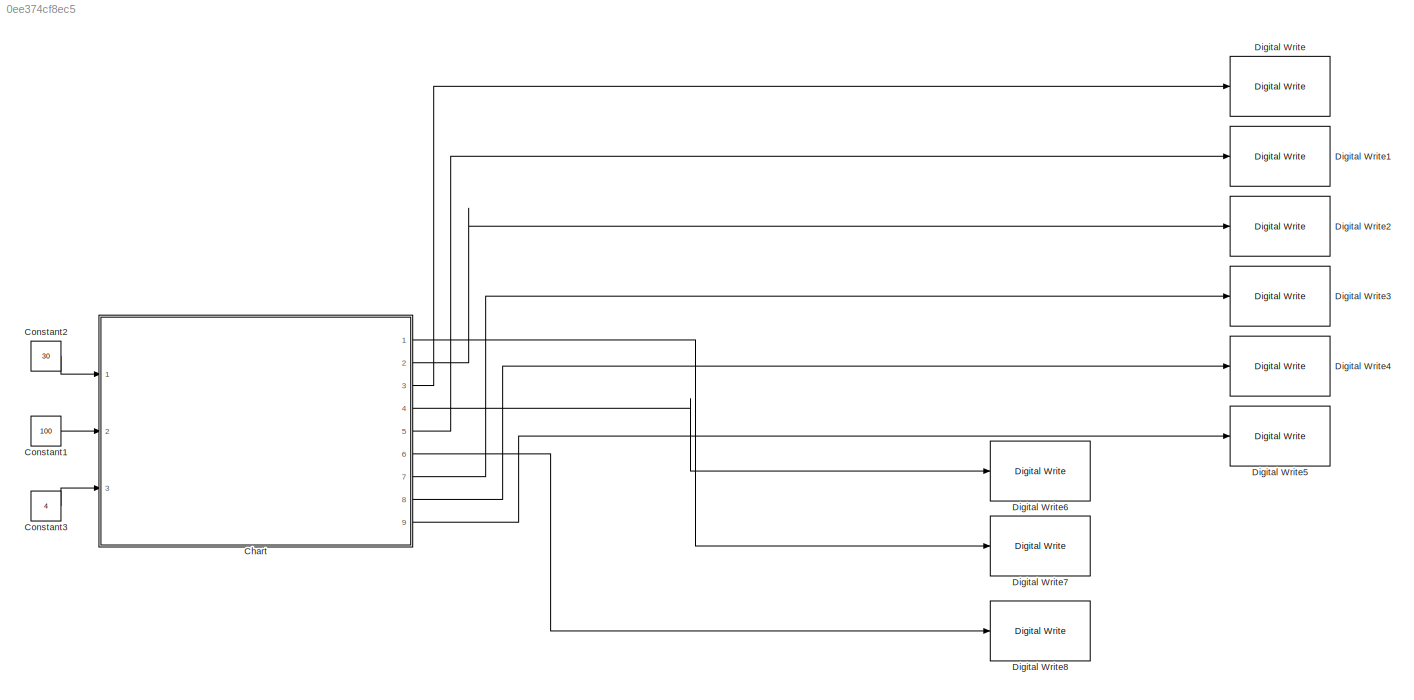
MODEL slx_0ee374cf8ec5
KIND model
CONFIG AbsTol = auto
CONFIG EnableMultiTasking = on
CONFIG FixedStep = 1e-3
CONFIG MaxStep = auto
CONFIG MinStep = auto
CONFIG RelTol = 1e-3
CONFIG SampleTimeConstraint = Unconstrained
CONFIG SolverName = FixedStepAuto
CONFIG StartTime = 0.0
CONFIG StopTime = 10.0
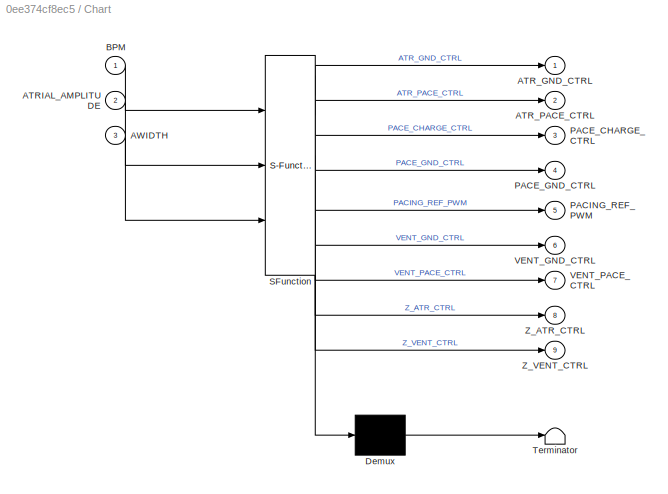
BLOCK [SubSystem] Chart
  ErrorFcn = Stateflow.Translate.translate
  PermitHierarchicalResolution = ExplicitOnly
  PortSchema = {"entries":[{"content":{"sides":[{"content":{"connectorIds":["In1","In2","In3"]},"type":"ConnectorPlacement.EquallySpacedRectSide","uuid":"a22e05d8-b46e-41db-a99f-a3bab389e16c"},{"content":{"connectorIds":["Out3","Out5","Out2","Out7","Out8","Out9","Out4","Out1","Out6"],"side":"RIGHT"},"type":"ConnectorPlacement.EquallySpacedRectSide","uuid":"b830ec1d-656a-4b92-afcd-8fda6b31ad8a"},{"content":{"conn...<+308ch>
  Ports = [3, 9]
  RequestExecContextInheritance = off
  SFBlockType = Chart
  TreatAsAtomicUnit = on
BLOCK [Demux] Chart/ Demux 
  Outputs = 1
  Ports = [1, 1]
BLOCK [S-Function] Chart/ SFunction 
  EnableBusSupport = on
  FunctionName = sf_sfun
  PortCounts = [3 10]
  Ports = [3, 10]
  SFcnIsStateOwnerBlock = off
  SFunctionDeploymentMode = off
  Tag = Stateflow S-Function 3
BLOCK [Terminator] Chart/ Terminator 
BLOCK [Inport] Chart/ATRIAL_AMPLITUDE
  Port = 2
BLOCK [Outport] Chart/ATR_GND_CTRL
BLOCK [Outport] Chart/ATR_PACE_CTRL
  Port = 2
BLOCK [Inport] Chart/AWIDTH
  Port = 3
BLOCK [Inport] Chart/BPM
BLOCK [Outport] Chart/PACE_CHARGE_CTRL
  Port = 3
BLOCK [Outport] Chart/PACE_GND_CTRL
  Port = 4
BLOCK [Outport] Chart/PACING_REF_PWM
  Port = 5
BLOCK [Outport] Chart/VENT_GND_CTRL
  Port = 6
BLOCK [Outport] Chart/VENT_PACE_CTRL
  Port = 7
BLOCK [Outport] Chart/Z_ATR_CTRL
  Port = 8
BLOCK [Outport] Chart/Z_VENT_CTRL
  Port = 9
BLOCK [Constant] Constant1
  Value = 100
BLOCK [Constant] Constant2
  Value = 30
BLOCK [Constant] Constant3
  Value = 4
BLOCK [Reference] Digital Write  REF=frdmk64flib/Digital Write
  Ports = [1]
  SourceBlock = frdmk64flib/Digital Write
  SourceProductBaseCode = EC_FRDM_K64F
  SourceType = freedomk64f.DigitalWrite
BLOCK [Reference] Digital Write1  REF=frdmk64flib/Digital Write
  Ports = [1]
  SourceBlock = frdmk64flib/Digital Write
  SourceProductBaseCode = EC_FRDM_K64F
  SourceType = freedomk64f.DigitalWrite
BLOCK [Reference] Digital Write2  REF=frdmk64flib/Digital Write
  Ports = [1]
  SourceBlock = frdmk64flib/Digital Write
  SourceProductBaseCode = EC_FRDM_K64F
  SourceType = freedomk64f.DigitalWrite
BLOCK [Reference] Digital Write3  REF=frdmk64flib/Digital Write
  Ports = [1]
  SourceBlock = frdmk64flib/Digital Write
  SourceProductBaseCode = EC_FRDM_K64F
  SourceType = freedomk64f.DigitalWrite
BLOCK [Reference] Digital Write4  REF=frdmk64flib/Digital Write
  Ports = [1]
  SourceBlock = frdmk64flib/Digital Write
  SourceProductBaseCode = EC_FRDM_K64F
  SourceType = freedomk64f.DigitalWrite
BLOCK [Reference] Digital Write5  REF=frdmk64flib/Digital Write
  Ports = [1]
  SourceBlock = frdmk64flib/Digital Write
  SourceProductBaseCode = EC_FRDM_K64F
  SourceType = freedomk64f.DigitalWrite
BLOCK [Reference] Digital Write6  REF=frdmk64flib/Digital Write
  Ports = [1]
  SourceBlock = frdmk64flib/Digital Write
  SourceProductBaseCode = EC_FRDM_K64F
  SourceType = freedomk64f.DigitalWrite
BLOCK [Reference] Digital Write7  REF=frdmk64flib/Digital Write
  Ports = [1]
  SourceBlock = frdmk64flib/Digital Write
  SourceProductBaseCode = EC_FRDM_K64F
  SourceType = freedomk64f.DigitalWrite
BLOCK [Reference] Digital Write8  REF=frdmk64flib/Digital Write
  Ports = [1]
  SourceBlock = frdmk64flib/Digital Write
  SourceProductBaseCode = EC_FRDM_K64F
  SourceType = freedomk64f.DigitalWrite
LINE Chart:1 -> Digital Write7:1
LINE Chart:2 -> Digital Write2:1
LINE Chart:3 -> Digital Write:1
LINE Chart:4 -> Digital Write6:1
LINE Chart:5 -> Digital Write1:1
LINE Chart:6 -> Digital Write8:1
LINE Chart:7 -> Digital Write3:1
LINE Chart:8 -> Digital Write4:1
LINE Chart:9 -> Digital Write5:1
LINE Constant1:1 -> Chart:2
LINE Constant2:1 -> Chart:1
LINE Constant3:1 -> Chart:3
CHART Chart states=2 transitions=3
  STATE_LABEL 'C22_CHARGE\nentry:\nPACE_GND_CTRL = 1;\nATR_PACE_CTRL = 0;\nVENT_PACE_CTRL = 0;\nPACING_REF_PWM = ATRIAL_AMPLITUDE;\nPACE_CHARGE_CTRL = 1;\nZ_ATR_CTRL = 0;\nZ_VENT_CTRL = 0;\nATR_GND_CTRL = 1;\nVENT_GND_CTRL = 0;'
  STATE_LABEL 'PACE_ATR\nentry:\nPACE_CHARGE_CTRL = 0;\nPACE_GND_CTRL = 1;\nVENT_GND_CTRL = 0;\nVENT_PACE_CTRL = 0;\nZ_ATR_CTRL = 0;\nZ_VENT_CTRL = 0;\nATR_GND_CTRL = 0;\nATR_PACE_CTRL = 1;\n'
CHART  states=0 transitions=0
